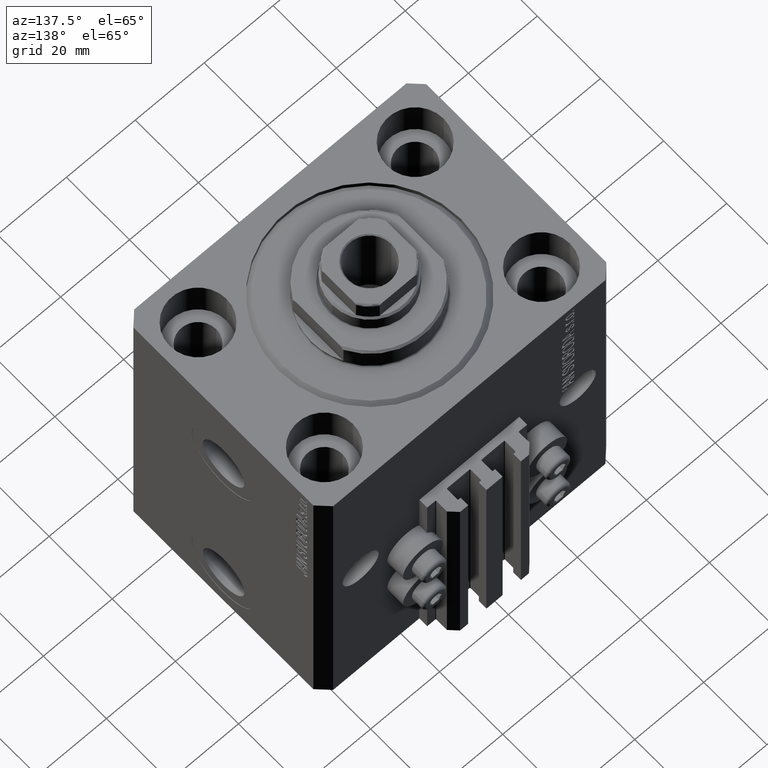
[diagram: clean part render]
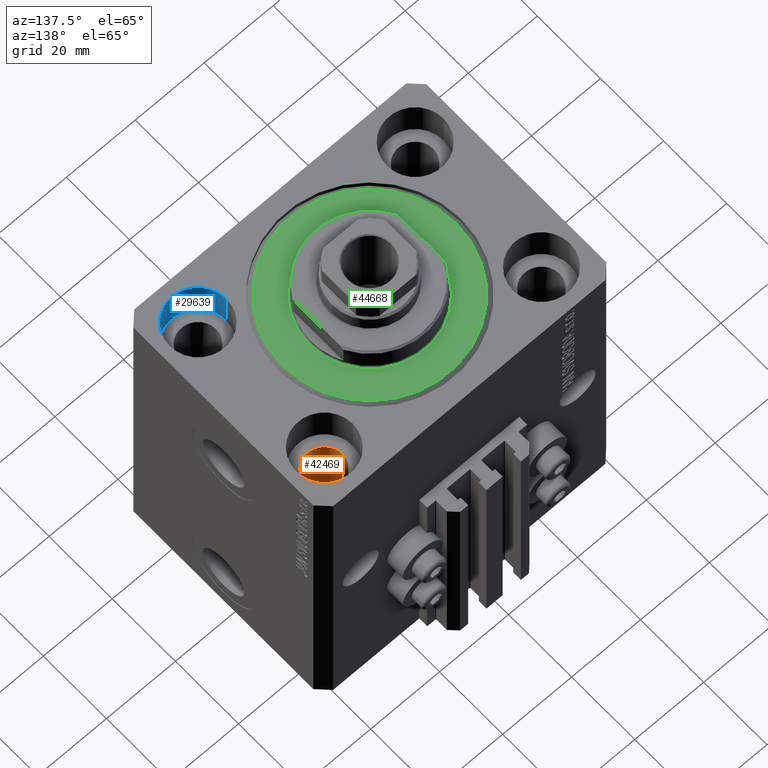
[diagram: same view with three faces highlighted in distinct colors, each labeled with its STEP entity id]
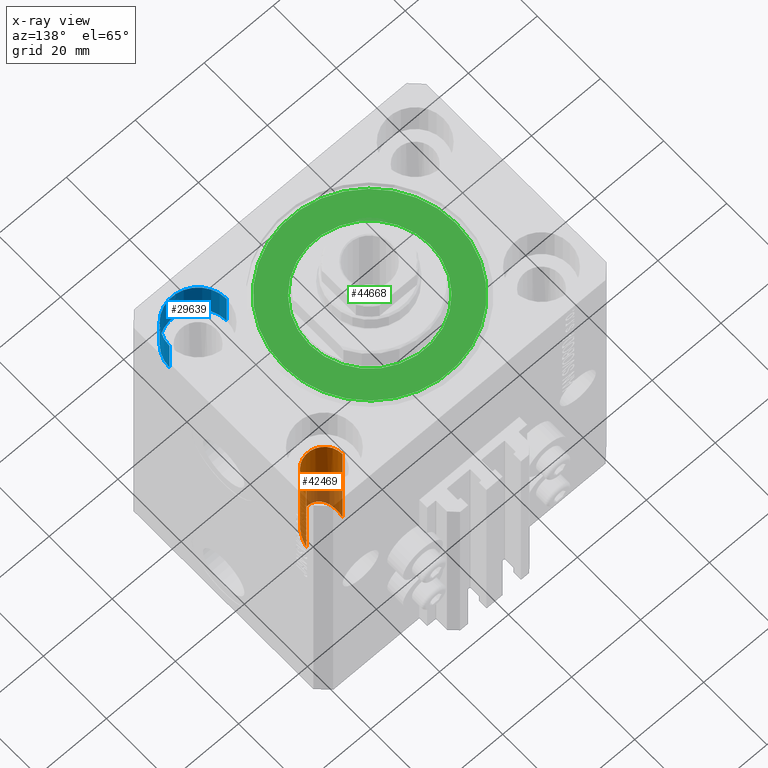
[diagram: x-ray of the same camera — body ghosted, the three highlighted faces saturated]
A machine part, auxiliary view with three faces highlighted in distinct colors.
The next image is the same camera in x-ray (body ghosted, the three faces saturated) — at least one of them is partly hidden behind the body in this view.
Their STEP definitions:

[orange] entity #42469 — the highlighted cylindrical surface (edge-blend (fillet) strip) has radius 5.25 mm, axis along (0, 0, 1).
#651 = CARTESIAN_POINT ( 'NONE',  ( 26.25000000000000355, 20.00000000000001066, -11.00000000000000000 ) ) ;
#1487 = VERTEX_POINT ( 'NONE', #42680 ) ;
#4298 = DIRECTION ( 'NONE',  ( -0.000000000000000000, -0.000000000000000000, 1.000000000000000000 ) ) ;
#5084 = CARTESIAN_POINT ( 'NONE',  ( 36.75000000000000711, 20.00000000000001066, -43.00000000000000000 ) ) ;
#5710 = VECTOR ( 'NONE', #4298, 1000.000000000000000 ) ;
#5997 = CARTESIAN_POINT ( 'NONE',  ( 26.25000000000000355, 20.00000000000001066, -93.00000000000000000 ) ) ;
#6940 = DIRECTION ( 'NONE',  ( -0.000000000000000000, -0.000000000000000000, 1.000000000000000000 ) ) ;
#7672 = CARTESIAN_POINT ( 'NONE',  ( 26.25000000000001776, 9.500000000000023093, -32.50000000000000711 ) ) ;
#8248 = DIRECTION ( 'NONE',  ( 1.000000000000000000, 0.000000000000000000, 0.000000000000000000 ) ) ;
#8372 = AXIS2_PLACEMENT_3D ( 'NONE', #26754, #40316, #8248 ) ;
#9431 = ORIENTED_EDGE ( 'NONE', *, *, #40683, .T. ) ;
#9606 = LINE ( 'NONE', #5997, #29029 ) ;
#10100 = VERTEX_POINT ( 'NONE', #651 ) ;
#11536 = CARTESIAN_POINT ( 'NONE',  ( 31.50000000000000000, 20.00000000000001066, -11.00000000000000000 ) ) ;
#14413 = EDGE_LOOP ( 'NONE', ( #38165, #9431, #15305, #22212 ) ) ;
#14768 =( BOUNDED_CURVE ( )  B_SPLINE_CURVE ( 3, ( #44251, #30016, #7672, #18712 ),
 .UNSPECIFIED., .F., .F. ) 
 B_SPLINE_CURVE_WITH_KNOTS ( ( 4, 4 ),
 ( 4.712388980384689674, 7.853981633974482790 ),
 .UNSPECIFIED. ) 
 CURVE ( )  GEOMETRIC_REPRESENTATION_ITEM ( )  RATIONAL_B_SPLINE_CURVE ( ( 1.000000000000000000, 0.3333333333333333703, 0.3333333333333333703, 1.000000000000000000 ) ) 
 REPRESENTATION_ITEM ( '' )  );
#15305 = ORIENTED_EDGE ( 'NONE', *, *, #29484, .T. ) ;
#16191 = CYLINDRICAL_SURFACE ( 'NONE', #8372, 5.249999999999997335 ) ;
#18712 = CARTESIAN_POINT ( 'NONE',  ( 26.25000000000001066, 20.00000000000001066, -43.00000000000000000 ) ) ;
#21975 = EDGE_CURVE ( 'NONE', #46846, #1487, #37260, .T. ) ;
#22212 = ORIENTED_EDGE ( 'NONE', *, *, #21975, .F. ) ;
#22654 = CIRCLE ( 'NONE', #25717, 5.249999999999997335 ) ;
#25717 = AXIS2_PLACEMENT_3D ( 'NONE', #11536, #26201, #35015 ) ;
#26201 = DIRECTION ( 'NONE',  ( 0.000000000000000000, 0.000000000000000000, 1.000000000000000000 ) ) ;
#26754 = CARTESIAN_POINT ( 'NONE',  ( 31.50000000000000000, 20.00000000000001066, -93.00000000000000000 ) ) ;
#28908 = CARTESIAN_POINT ( 'NONE',  ( 26.25000000000001066, 20.00000000000001066, -43.00000000000000000 ) ) ;
#29029 = VECTOR ( 'NONE', #6940, 1000.000000000000000 ) ;
#29484 = EDGE_CURVE ( 'NONE', #10100, #1487, #22654, .T. ) ;
#30016 = CARTESIAN_POINT ( 'NONE',  ( 36.75000000000000000, 9.500000000000023093, -32.50000000000000711 ) ) ;
#30745 = CARTESIAN_POINT ( 'NONE',  ( 36.75000000000000000, 20.00000000000001066, -93.00000000000000000 ) ) ;
#34215 = FACE_OUTER_BOUND ( 'NONE', #14413, .T. ) ;
#35015 = DIRECTION ( 'NONE',  ( 1.000000000000000000, 0.000000000000000000, 0.000000000000000000 ) ) ;
#35048 = VERTEX_POINT ( 'NONE', #28908 ) ;
#37260 = LINE ( 'NONE', #30745, #5710 ) ;
#38165 = ORIENTED_EDGE ( 'NONE', *, *, #43907, .T. ) ;
#40316 = DIRECTION ( 'NONE',  ( -0.000000000000000000, -0.000000000000000000, 1.000000000000000000 ) ) ;
#40683 = EDGE_CURVE ( 'NONE', #35048, #10100, #9606, .T. ) ;
#42469 = ADVANCED_FACE ( 'NONE', ( #34215 ), #16191, .F. ) ;
#42680 = CARTESIAN_POINT ( 'NONE',  ( 36.75000000000000000, 20.00000000000001066, -11.00000000000000000 ) ) ;
#43907 = EDGE_CURVE ( 'NONE', #46846, #35048, #14768, .T. ) ;
#44251 = CARTESIAN_POINT ( 'NONE',  ( 36.75000000000000711, 20.00000000000001066, -43.00000000000000000 ) ) ;
#46846 = VERTEX_POINT ( 'NONE', #5084 ) ;

[blue] entity #29639 — the highlighted cylindrical surface (partial cylindrical patch) has radius 8.25 mm, axis along (0, 0, 1).
#3644 = ORIENTED_EDGE ( 'NONE', *, *, #18943, .T. ) ;
#4412 = CARTESIAN_POINT ( 'NONE',  ( 39.74999999999999289, -20.00000000000000000, -11.00000000000000000 ) ) ;
#4647 = LINE ( 'NONE', #4412, #11228 ) ;
#5224 = VERTEX_POINT ( 'NONE', #28436 ) ;
#5874 = DIRECTION ( 'NONE',  ( 0.000000000000000000, 0.000000000000000000, 1.000000000000000000 ) ) ;
#5889 = CARTESIAN_POINT ( 'NONE',  ( 23.25000000000000355, -20.00000000000000000, -11.00000000000000000 ) ) ;
#6554 = VECTOR ( 'NONE', #12873, 1000.000000000000000 ) ;
#7570 = DIRECTION ( 'NONE',  ( 1.000000000000000000, 0.000000000000000000, 0.000000000000000000 ) ) ;
#7922 = CIRCLE ( 'NONE', #15618, 8.249999999999992895 ) ;
#11228 = VECTOR ( 'NONE', #18370, 1000.000000000000000 ) ;
#11509 = VERTEX_POINT ( 'NONE', #14758 ) ;
#11911 = AXIS2_PLACEMENT_3D ( 'NONE', #13598, #19092, #7570 ) ;
#12873 = DIRECTION ( 'NONE',  ( -0.000000000000000000, -0.000000000000000000, 1.000000000000000000 ) ) ;
#13598 = CARTESIAN_POINT ( 'NONE',  ( 31.50000000000000000, -20.00000000000000000, -11.00000000000000000 ) ) ;
#14758 = CARTESIAN_POINT ( 'NONE',  ( 23.25000000000000355, -20.00000000000000000, 0.000000000000000000 ) ) ;
#15618 = AXIS2_PLACEMENT_3D ( 'NONE', #45580, #37635, #37397 ) ;
#17077 = ORIENTED_EDGE ( 'NONE', *, *, #19924, .F. ) ;
#18370 = DIRECTION ( 'NONE',  ( -0.000000000000000000, -0.000000000000000000, 1.000000000000000000 ) ) ;
#18836 = ORIENTED_EDGE ( 'NONE', *, *, #34004, .T. ) ;
#18943 = EDGE_CURVE ( 'NONE', #11509, #45314, #7922, .T. ) ;
#19092 = DIRECTION ( 'NONE',  ( -0.000000000000000000, -0.000000000000000000, 1.000000000000000000 ) ) ;
#19924 = EDGE_CURVE ( 'NONE', #32327, #5224, #29442, .T. ) ;
#20106 = CARTESIAN_POINT ( 'NONE',  ( 39.74999999999999289, -20.00000000000000000, 0.000000000000000000 ) ) ;
#20265 = EDGE_LOOP ( 'NONE', ( #17077, #18836, #3644, #38838 ) ) ;
#20545 = DIRECTION ( 'NONE',  ( 1.000000000000000000, 0.000000000000000000, 0.000000000000000000 ) ) ;
#26461 = CARTESIAN_POINT ( 'NONE',  ( 23.25000000000000355, -20.00000000000000000, -11.00000000000000000 ) ) ;
#28234 = CARTESIAN_POINT ( 'NONE',  ( 31.50000000000000000, -20.00000000000000000, -11.00000000000000000 ) ) ;
#28436 = CARTESIAN_POINT ( 'NONE',  ( 39.74999999999999289, -20.00000000000000000, -11.00000000000000000 ) ) ;
#29442 = CIRCLE ( 'NONE', #38689, 8.249999999999992895 ) ;
#29639 = ADVANCED_FACE ( 'NONE', ( #31882 ), #46575, .F. ) ;
#31863 = LINE ( 'NONE', #5889, #6554 ) ;
#31882 = FACE_OUTER_BOUND ( 'NONE', #20265, .T. ) ;
#32327 = VERTEX_POINT ( 'NONE', #26461 ) ;
#34004 = EDGE_CURVE ( 'NONE', #32327, #11509, #31863, .T. ) ;
#35790 = EDGE_CURVE ( 'NONE', #5224, #45314, #4647, .T. ) ;
#37397 = DIRECTION ( 'NONE',  ( 1.000000000000000000, 0.000000000000000000, 0.000000000000000000 ) ) ;
#37635 = DIRECTION ( 'NONE',  ( 0.000000000000000000, 0.000000000000000000, 1.000000000000000000 ) ) ;
#38689 = AXIS2_PLACEMENT_3D ( 'NONE', #28234, #5874, #20545 ) ;
#38838 = ORIENTED_EDGE ( 'NONE', *, *, #35790, .F. ) ;
#45314 = VERTEX_POINT ( 'NONE', #20106 ) ;
#45580 = CARTESIAN_POINT ( 'NONE',  ( 31.50000000000000000, -20.00000000000000000, 0.000000000000000000 ) ) ;
#46575 = CYLINDRICAL_SURFACE ( 'NONE', #11911, 8.249999999999992895 ) ;

[green] entity #44668 — the highlighted planar face has unit normal (0, 0, -1).
#563 = DIRECTION ( 'NONE',  ( 1.000000000000000000, 0.000000000000000000, -0.000000000000000000 ) ) ;
#837 = AXIS2_PLACEMENT_3D ( 'NONE', #4668, #34017, #30400 ) ;
#866 = CIRCLE ( 'NONE', #837, 17.50000000000000000 ) ;
#1819 = CARTESIAN_POINT ( 'NONE',  ( 0.000000000000000000, 0.000000000000000000, 0.000000000000000000 ) ) ;
#3951 = DIRECTION ( 'NONE',  ( 0.000000000000000000, 0.000000000000000000, 1.000000000000000000 ) ) ;
#4042 = CARTESIAN_POINT ( 'NONE',  ( -24.99999999999995026, 3.153465507804431248E-15, 0.000000000000000000 ) ) ;
#4668 = CARTESIAN_POINT ( 'NONE',  ( 0.000000000000000000, 0.000000000000000000, 0.000000000000000000 ) ) ;
#4940 = EDGE_CURVE ( 'NONE', #47264, #32548, #42942, .T. ) ;
#5120 = EDGE_CURVE ( 'NONE', #7560, #30412, #5286, .T. ) ;
#5286 = CIRCLE ( 'NONE', #32164, 17.50000000000000000 ) ;
#5439 = DIRECTION ( 'NONE',  ( 1.000000000000000000, 0.000000000000000000, 0.000000000000000000 ) ) ;
#7560 = VERTEX_POINT ( 'NONE', #29076 ) ;
#8065 = DIRECTION ( 'NONE',  ( 1.000000000000000000, 0.000000000000000000, 0.000000000000000000 ) ) ;
#9498 = AXIS2_PLACEMENT_3D ( 'NONE', #25395, #11208, #8065 ) ;
#9566 = ORIENTED_EDGE ( 'NONE', *, *, #4940, .T. ) ;
#10367 = EDGE_LOOP ( 'NONE', ( #9566, #33037 ) ) ;
#11208 = DIRECTION ( 'NONE',  ( -0.000000000000000000, -0.000000000000000000, -1.000000000000000000 ) ) ;
#14181 = EDGE_CURVE ( 'NONE', #30412, #7560, #866, .T. ) ;
#14316 = CARTESIAN_POINT ( 'NONE',  ( 0.000000000000000000, 0.000000000000000000, 0.000000000000000000 ) ) ;
#15627 = CARTESIAN_POINT ( 'NONE',  ( -17.50000000000000000, 2.143131898507868643E-15, 2.168404344971008868E-16 ) ) ;
#19700 = EDGE_CURVE ( 'NONE', #32548, #47264, #45604, .T. ) ;
#20632 = AXIS2_PLACEMENT_3D ( 'NONE', #1819, #23249, #5439 ) ;
#21530 = DIRECTION ( 'NONE',  ( 0.000000000000000000, 0.000000000000000000, 1.000000000000000000 ) ) ;
#22237 = PLANE ( 'NONE',  #40576 ) ;
#23249 = DIRECTION ( 'NONE',  ( -0.000000000000000000, -0.000000000000000000, -1.000000000000000000 ) ) ;
#24430 = CARTESIAN_POINT ( 'NONE',  ( 0.000000000000000000, 0.000000000000000000, 0.000000000000000000 ) ) ;
#24943 = CARTESIAN_POINT ( 'NONE',  ( 24.99999999999995026, 0.000000000000000000, 0.000000000000000000 ) ) ;
#25395 = CARTESIAN_POINT ( 'NONE',  ( 0.000000000000000000, 0.000000000000000000, 0.000000000000000000 ) ) ;
#26080 = FACE_OUTER_BOUND ( 'NONE', #10367, .T. ) ;
#29076 = CARTESIAN_POINT ( 'NONE',  ( 17.50000000000000000, 0.000000000000000000, 2.168404344971008868E-16 ) ) ;
#29913 = FACE_BOUND ( 'NONE', #46027, .T. ) ;
#30400 = DIRECTION ( 'NONE',  ( 1.000000000000000000, 0.000000000000000000, 0.000000000000000000 ) ) ;
#30412 = VERTEX_POINT ( 'NONE', #15627 ) ;
#32164 = AXIS2_PLACEMENT_3D ( 'NONE', #24430, #21530, #43682 ) ;
#32548 = VERTEX_POINT ( 'NONE', #4042 ) ;
#33037 = ORIENTED_EDGE ( 'NONE', *, *, #19700, .T. ) ;
#33211 = ORIENTED_EDGE ( 'NONE', *, *, #5120, .T. ) ;
#34017 = DIRECTION ( 'NONE',  ( 0.000000000000000000, 0.000000000000000000, 1.000000000000000000 ) ) ;
#40576 = AXIS2_PLACEMENT_3D ( 'NONE', #14316, #3951, #563 ) ;
#42942 = CIRCLE ( 'NONE', #20632, 24.99999999999995026 ) ;
#43682 = DIRECTION ( 'NONE',  ( 1.000000000000000000, 0.000000000000000000, 0.000000000000000000 ) ) ;
#44668 = ADVANCED_FACE ( 'NONE', ( #29913, #26080 ), #22237, .F. ) ;
#45604 = CIRCLE ( 'NONE', #9498, 24.99999999999995026 ) ;
#46027 = EDGE_LOOP ( 'NONE', ( #33211, #46598 ) ) ;
#46598 = ORIENTED_EDGE ( 'NONE', *, *, #14181, .T. ) ;
#47264 = VERTEX_POINT ( 'NONE', #24943 ) ;